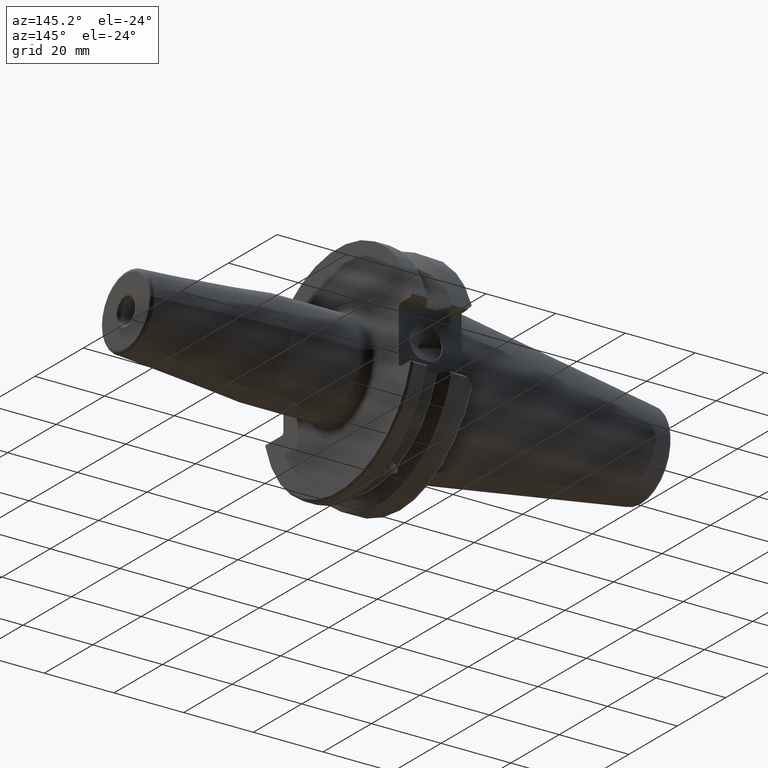
[diagram: clean part render]
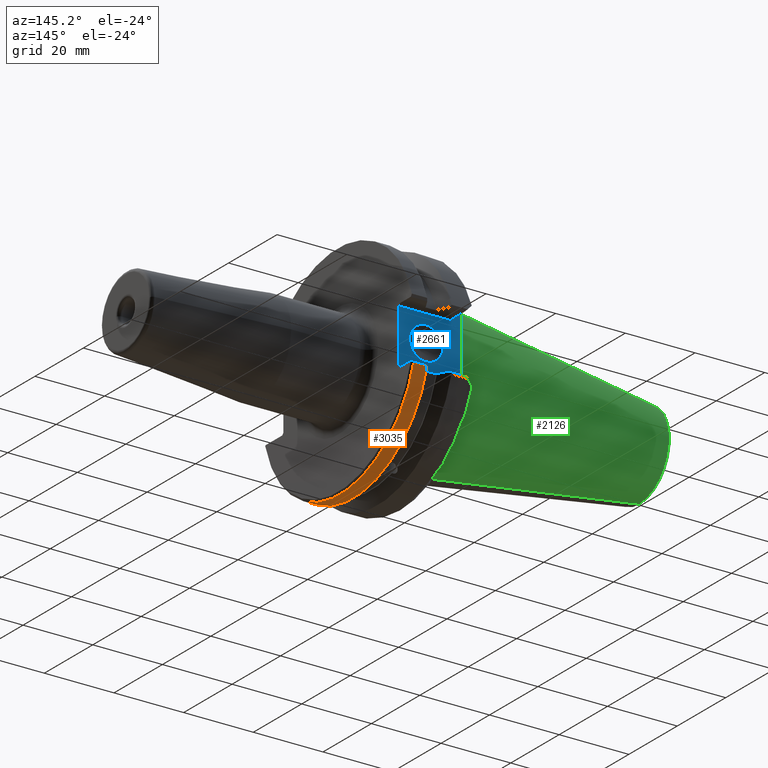
[diagram: same view with three faces highlighted in distinct colors, each labeled with its STEP entity id]
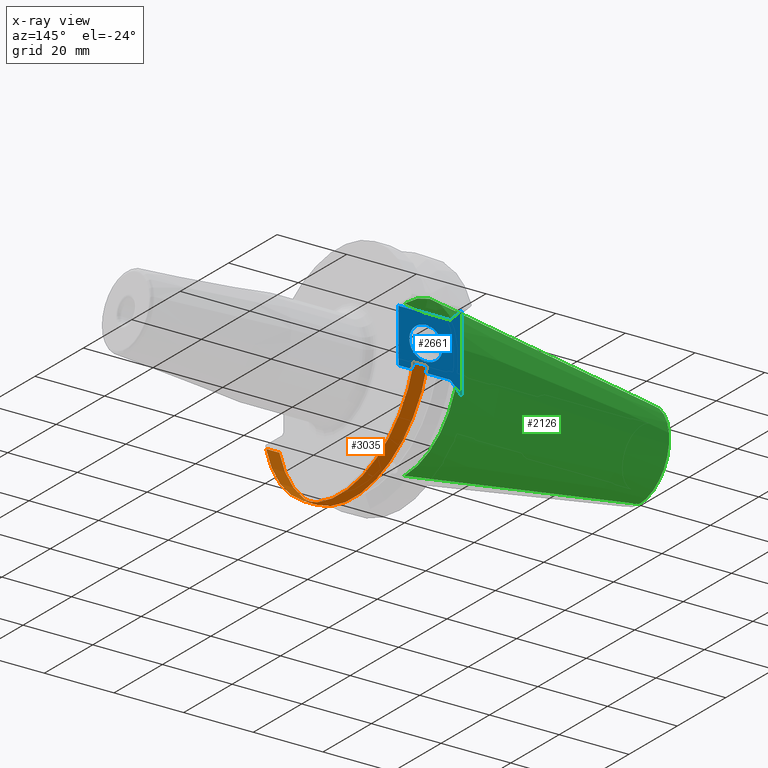
[diagram: x-ray of the same camera — body ghosted, the three highlighted faces saturated]
A machine part, auxiliary view with three faces highlighted in distinct colors.
The next image is the same camera in x-ray (body ghosted, the three faces saturated) — at least one of them is partly hidden behind the body in this view.
Their STEP definitions:

[orange] entity #3035 — the highlighted cylindrical surface (partial cylindrical patch) has radius 31.75 mm, axis along (1, 0, 0).
#447=CARTESIAN_POINT('',(1.470216676908E1,-3.049771389266E1,-8.82904E0));
#453=CARTESIAN_POINT('',(1.470216676908E1,0.E0,0.E0));
#454=DIRECTION('',(1.E0,0.E0,0.E0));
#455=DIRECTION('',(0.E0,-9.605579178790E-1,-2.7808E-1));
#456=AXIS2_PLACEMENT_3D('',#453,#454,#455);
#462=CARTESIAN_POINT('',(1.470216676908E1,3.049771389266E1,-8.82904E0));
#691=DIRECTION('',(1.E0,0.E0,0.E0));
#692=VECTOR('',#691,3.847875959240E0);
#693=CARTESIAN_POINT('',(1.470216676908E1,3.049771389266E1,-8.82904E0));
#694=LINE('',#693,#692);
#695=DIRECTION('',(-1.E0,0.E0,0.E0));
#696=VECTOR('',#695,3.847722488224E0);
#697=CARTESIAN_POINT('',(1.854988925730E1,-3.049771389266E1,-8.82904E0));
#698=LINE('',#697,#696);
#1470=CARTESIAN_POINT('',(1.855004272832E1,3.049771389266E1,-8.82904E0));
#1476=CARTESIAN_POINT('',(1.854995949116E1,7.988673359682E-5,
1.318174727594E-5));
#1477=DIRECTION('',(-1.E0,0.E0,0.E0));
#1478=DIRECTION('',(0.E0,9.605576124124E-1,-2.780810551558E-1));
#1479=AXIS2_PLACEMENT_3D('',#1476,#1477,#1478);
#1485=CARTESIAN_POINT('',(1.854988925730E1,-3.049771389266E1,-8.82904E0));
#1875=VERTEX_POINT('',#1470);
#1881=VERTEX_POINT('',#462);
#1908=VERTEX_POINT('',#447);
#1913=VERTEX_POINT('',#1485);
#3021=CARTESIAN_POINT('',(9.75E-2,0.E0,0.E0));
#3022=DIRECTION('',(1.E0,0.E0,0.E0));
#3023=DIRECTION('',(0.E0,0.E0,1.E0));
#3024=AXIS2_PLACEMENT_3D('',#3021,#3022,#3023);
#3025=CYLINDRICAL_SURFACE('',#3024,3.175E1);
#3027=ORIENTED_EDGE('',*,*,#3026,.F.);
#3028=ORIENTED_EDGE('',*,*,#2781,.F.);
#3030=ORIENTED_EDGE('',*,*,#3029,.F.);
#3032=ORIENTED_EDGE('',*,*,#3031,.F.);
#3033=EDGE_LOOP('',(#3027,#3028,#3030,#3032));
#3034=FACE_OUTER_BOUND('',#3033,.F.);
#3035=ADVANCED_FACE('',(#3034),#3025,.T.);
#457=CIRCLE('',#456,3.175E1);
#1480=CIRCLE('',#1479,3.175001016727E1);
#2781=EDGE_CURVE('',#1908,#1881,#457,.T.);
#3026=EDGE_CURVE('',#1881,#1875,#694,.T.);
#3029=EDGE_CURVE('',#1913,#1908,#698,.T.);
#3031=EDGE_CURVE('',#1875,#1913,#1480,.T.);

[blue] entity #2661 — the highlighted planar face has unit normal (0, 1, 0).
#301=DIRECTION('',(0.E0,0.E0,-1.E0));
#302=VECTOR('',#301,1.538E1);
#303=CARTESIAN_POINT('',(1.905E1,2.5E1,7.69E0));
#304=LINE('',#303,#302);
#351=CARTESIAN_POINT('',(1.1176E1,2.5E1,0.E0));
#352=DIRECTION('',(0.E0,1.E0,0.E0));
#353=DIRECTION('',(1.E0,0.E0,0.E0));
#354=AXIS2_PLACEMENT_3D('',#351,#352,#353);
#356=CARTESIAN_POINT('',(1.1176E1,2.5E1,0.E0));
#357=DIRECTION('',(0.E0,1.E0,0.E0));
#358=DIRECTION('',(-1.E0,0.E0,0.E0));
#359=AXIS2_PLACEMENT_3D('',#356,#357,#358);
#361=DIRECTION('',(-1.E0,0.E0,0.E0));
#362=VECTOR('',#361,1.485E1);
#363=CARTESIAN_POINT('',(1.905E1,2.5E1,7.69E0));
#364=LINE('',#363,#362);
#365=DIRECTION('',(0.E0,0.E0,-1.E0));
#366=VECTOR('',#365,2.178E1);
#367=CARTESIAN_POINT('',(1.E0,2.5E1,1.089E1));
#368=LINE('',#367,#366);
#369=DIRECTION('',(1.E0,0.E0,0.E0));
#370=VECTOR('',#369,1.485E1);
#371=CARTESIAN_POINT('',(4.2E0,2.5E1,-7.69E0));
#372=LINE('',#371,#370);
#581=DIRECTION('',(-7.071067811865E-1,0.E0,-7.071067811865E-1));
#582=VECTOR('',#581,4.525483399594E0);
#583=CARTESIAN_POINT('',(4.2E0,2.5E1,-7.69E0));
#584=LINE('',#583,#582);
#1452=DIRECTION('',(7.071067811865E-1,0.E0,-7.071067811865E-1));
#1453=VECTOR('',#1452,4.525483399594E0);
#1454=CARTESIAN_POINT('',(1.E0,2.5E1,1.089E1));
#1455=LINE('',#1454,#1453);
#1821=CARTESIAN_POINT('',(1.59385E1,2.5E1,0.E0));
#1822=CARTESIAN_POINT('',(6.4135E0,2.5E1,0.E0));
#1823=VERTEX_POINT('',#1821);
#1824=VERTEX_POINT('',#1822);
#1853=CARTESIAN_POINT('',(1.E0,2.5E1,1.089E1));
#1854=CARTESIAN_POINT('',(1.E0,2.5E1,-1.089E1));
#1855=VERTEX_POINT('',#1853);
#1856=VERTEX_POINT('',#1854);
#1921=CARTESIAN_POINT('',(1.905E1,2.5E1,7.69E0));
#1922=CARTESIAN_POINT('',(4.2E0,2.5E1,7.69E0));
#1923=VERTEX_POINT('',#1921);
#1924=VERTEX_POINT('',#1922);
#1929=CARTESIAN_POINT('',(4.2E0,2.5E1,-7.69E0));
#1930=CARTESIAN_POINT('',(1.905E1,2.5E1,-7.69E0));
#1931=VERTEX_POINT('',#1929);
#1932=VERTEX_POINT('',#1930);
#2637=CARTESIAN_POINT('',(0.E0,2.5E1,0.E0));
#2638=DIRECTION('',(0.E0,1.E0,0.E0));
#2639=DIRECTION('',(1.E0,0.E0,0.E0));
#2640=AXIS2_PLACEMENT_3D('',#2637,#2638,#2639);
#2641=PLANE('',#2640);
#2643=ORIENTED_EDGE('',*,*,#2642,.T.);
#2645=ORIENTED_EDGE('',*,*,#2644,.F.);
#2647=ORIENTED_EDGE('',*,*,#2646,.T.);
#2649=ORIENTED_EDGE('',*,*,#2648,.F.);
#2651=ORIENTED_EDGE('',*,*,#2650,.T.);
#2652=ORIENTED_EDGE('',*,*,#2597,.F.);
#2653=EDGE_LOOP('',(#2643,#2645,#2647,#2649,#2651,#2652));
#2654=FACE_OUTER_BOUND('',#2653,.F.);
#2656=ORIENTED_EDGE('',*,*,#2655,.T.);
#2658=ORIENTED_EDGE('',*,*,#2657,.T.);
#2659=EDGE_LOOP('',(#2656,#2658));
#2660=FACE_BOUND('',#2659,.F.);
#2661=ADVANCED_FACE('',(#2654,#2660),#2641,.T.);
#355=CIRCLE('',#354,4.7625E0);
#360=CIRCLE('',#359,4.7625E0);
#2597=EDGE_CURVE('',#1923,#1932,#304,.T.);
#2642=EDGE_CURVE('',#1923,#1924,#364,.T.);
#2644=EDGE_CURVE('',#1855,#1924,#1455,.T.);
#2646=EDGE_CURVE('',#1855,#1856,#368,.T.);
#2648=EDGE_CURVE('',#1931,#1856,#584,.T.);
#2650=EDGE_CURVE('',#1931,#1932,#372,.T.);
#2655=EDGE_CURVE('',#1823,#1824,#355,.T.);
#2657=EDGE_CURVE('',#1824,#1823,#360,.T.);

[green] entity #2126 — the highlighted conical surface has half-angle 8.297 deg.
#2=CARTESIAN_POINT('',(-6.739430687632E1,0.E0,0.E0));
#3=DIRECTION('',(-1.E0,0.E0,0.E0));
#4=DIRECTION('',(0.E0,0.E0,1.E0));
#5=AXIS2_PLACEMENT_3D('',#2,#3,#4);
#7=CARTESIAN_POINT('',(0.E0,0.E0,0.E0));
#8=DIRECTION('',(1.E0,0.E0,0.E0));
#9=DIRECTION('',(0.E0,0.E0,-1.E0));
#10=AXIS2_PLACEMENT_3D('',#7,#8,#9);
#1006=DIRECTION('',(-9.895329835059E-1,-1.947755452379E-13,-1.443068763221E-1));
#1007=VECTOR('',#1006,6.810718591466E1);
#1008=CARTESIAN_POINT('',(0.E0,0.E0,2.2225E1));
#1009=LINE('',#1008,#1007);
#1015=DIRECTION('',(-9.895329835059E-1,1.947888560543E-13,1.443068763221E-1));
#1016=VECTOR('',#1015,6.810718591466E1);
#1017=CARTESIAN_POINT('',(0.E0,0.E0,-2.2225E1));
#1018=LINE('',#1017,#1016);
#1765=CARTESIAN_POINT('',(0.E0,0.E0,-2.2225E1));
#1766=CARTESIAN_POINT('',(0.E0,0.E0,2.2225E1));
#1767=VERTEX_POINT('',#1765);
#1768=VERTEX_POINT('',#1766);
#1849=CARTESIAN_POINT('',(-6.739430687632E1,0.E0,-1.239666474557E1));
#1850=CARTESIAN_POINT('',(-6.739430687632E1,0.E0,1.239666474557E1));
#1851=VERTEX_POINT('',#1849);
#1852=VERTEX_POINT('',#1850);
#2111=CARTESIAN_POINT('',(-3.369715343816E1,0.E0,0.E0));
#2112=DIRECTION('',(1.E0,0.E0,0.E0));
#2113=DIRECTION('',(0.E0,0.E0,1.E0));
#2114=AXIS2_PLACEMENT_3D('',#2111,#2112,#2113);
#2115=CONICAL_SURFACE('',#2114,1.731083237279E1,8.297144E0);
#2117=ORIENTED_EDGE('',*,*,#2116,.T.);
#2119=ORIENTED_EDGE('',*,*,#2118,.F.);
#2121=ORIENTED_EDGE('',*,*,#2120,.T.);
#2123=ORIENTED_EDGE('',*,*,#2122,.T.);
#2124=EDGE_LOOP('',(#2117,#2119,#2121,#2123));
#2125=FACE_OUTER_BOUND('',#2124,.F.);
#2126=ADVANCED_FACE('',(#2125),#2115,.T.);
#6=CIRCLE('',#5,1.239666474557E1);
#11=CIRCLE('',#10,2.2225E1);
#2116=EDGE_CURVE('',#1852,#1851,#6,.T.);
#2118=EDGE_CURVE('',#1767,#1851,#1018,.T.);
#2120=EDGE_CURVE('',#1767,#1768,#11,.T.);
#2122=EDGE_CURVE('',#1768,#1852,#1009,.T.);